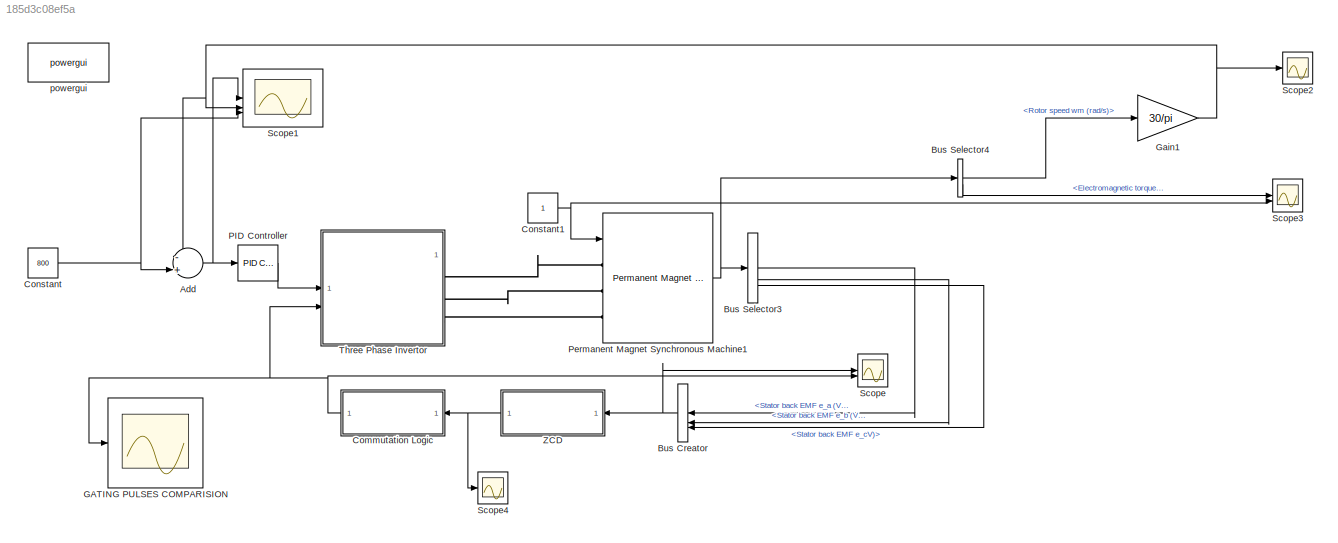
MODEL slx_185d3c08ef5a
KIND model
CONFIG AbsTol = auto
CONFIG EnableMultiTasking = off
CONFIG FixedStep = auto
CONFIG MaxStep = auto
CONFIG MinStep = auto
CONFIG RelTol = 1e-3
CONFIG SampleTimeConstraint = Unconstrained
CONFIG SolverName = VariableStepAuto
CONFIG StartTime = 0.0
CONFIG StopTime = 1
BLOCK [Sum] Add
  Inputs = -+|
BLOCK [BusCreator] Bus Creator
  DisplayOption = bar
  InheritFromInputs = on
  Inputs = 3
BLOCK [BusSelector] Bus Selector3
  OutputSignals = Stator back EMF e_a (V),Stator back EMF e_b (V),Stator back EMF e_cV)
BLOCK [BusSelector] Bus Selector4
  NameLocation = top
  OutputSignals = Rotor speed wm (rad/s),Electromagnetic torque Te (N*m)
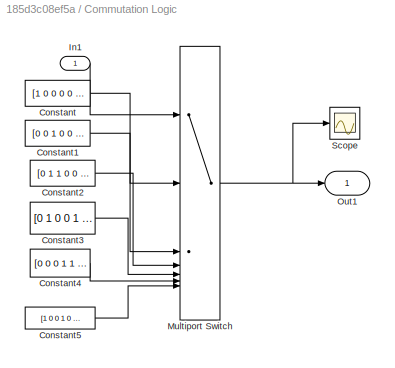
BLOCK [SubSystem] Commutation Logic
BLOCK [Constant] Commutation Logic/Constant
  Value = [1 0 0 0 0 1]
  VectorParams1D = off
BLOCK [Constant] Commutation Logic/Constant1
  Value = [0 0 1 0 0 1]
  VectorParams1D = off
BLOCK [Constant] Commutation Logic/Constant2
  Value = [0 1 1 0 0 0]
  VectorParams1D = off
BLOCK [Constant] Commutation Logic/Constant3
  Value = [0 1 0 0 1 0]
  VectorParams1D = off
BLOCK [Constant] Commutation Logic/Constant4
  Value = [0 0 0 1 1 0]
  VectorParams1D = off
BLOCK [Constant] Commutation Logic/Constant5
  Value = [1 0 0 1 0 0]
  VectorParams1D = off
BLOCK [Inport] Commutation Logic/In1
BLOCK [MultiPortSwitch] Commutation Logic/Multiport Switch
  DataPortOrder = Zero-based contiguous
  InputSameDT = off
  Inputs = 6
  SaturateOnIntegerOverflow = off
  zeroidx = on
BLOCK [Outport] Commutation Logic/Out1
BLOCK [Scope] Commutation Logic/Scope
  Floating = off
  NumInputPorts = 1
  ScopeSpecificationString = Simulink.scopes.TimeScopeBlockCfg('CurrentConfiguration', extmgr.ConfigurationSet(extmgr.Configuration('Core','General UI',true),extmgr.Configuration('Core','Source UI',true),extmgr.Configuration('Sources','WiredSimulink',true,'DataLoggingVariableName','ScopeData1'),extmgr.Configuration('Visuals','Time Domain',true,'SerializedDisplays',{struct('MinYLimReal','-0.125','MaxYLimReal','1.125','YLabelRe...<+1715ch>
BLOCK [Constant] Constant
  Value = 800
BLOCK [Constant] Constant1
BLOCK [Scope] GATING PULSES COMPARISION
  Floating = off
  NumInputPorts = 1
  ScopeSpecificationString = Simulink.scopes.TimeScopeBlockCfg('CurrentConfiguration', extmgr.ConfigurationSet(extmgr.Configuration('Core','General UI',true),extmgr.Configuration('Core','Source UI',true),extmgr.Configuration('Sources','WiredSimulink',true,'DataLoggingVariableName','ScopeData6'),extmgr.Configuration('Visuals','Time Domain',true,'SerializedDisplays',{struct('MinYLimReal','-0.125','MaxYLimReal','1.125','YLabelRe...<+2176ch>
BLOCK [Gain] Gain1
  Gain = 30/pi
BLOCK [Reference] PID Controller  REF=slpidlib/PID Controller
  LibrarySourceBlock = simulink/Continuous/PID Controller
  SourceBlock = slpidlib/PID Controller
  SourceType = PID 1dof
BLOCK [Reference] Permanent Magnet Synchronous Machine1  REF=spsPermanentMagnetSynchronousMachineLib/Permanent Magnet
Synchronous Machine
  LibrarySourceBlock = sps_lib/Electrical Machines/Permanent Magnet\nSynchronous Machine
  SourceBlock = spsPermanentMagnetSynchronousMachineLib/Permanent Magnet\nSynchronous Machine
  SourceType = Permanent Magnet Synchronous Machine
BLOCK [Scope] Scope
  Floating = off
  NumInputPorts = 2
  ScopeSpecificationString = Simulink.scopes.TimeScopeBlockCfg('CurrentConfiguration', extmgr.ConfigurationSet(extmgr.Configuration('Core','General UI',true),extmgr.Configuration('Core','Source UI',true),extmgr.Configuration('Sources','WiredSimulink',true,'DataLoggingVariableName','ScopeData2'),extmgr.Configuration('Visuals','Time Domain',true,'SerializedDisplays',{struct('MinYLimReal','-55.24574','MaxYLimReal','55.24574','YL...<+2193ch>
BLOCK [Scope] Scope1
  Floating = off
  NumInputPorts = 3
  ScopeSpecificationString = Simulink.scopes.TimeScopeBlockCfg('CurrentConfiguration', extmgr.ConfigurationSet(extmgr.Configuration('Core','General UI',true),extmgr.Configuration('Core','Source UI',true),extmgr.Configuration('Sources','WiredSimulink',true,'DataLoggingVariableName','ScopeData1'),extmgr.Configuration('Visuals','Time Domain',true,'SerializedDisplays',{struct('MinYLimReal','-9433.057','MaxYLimReal','9934.03385','...<+1539ch>
BLOCK [Scope] Scope2
  Floating = off
  NumInputPorts = 1
  ScopeSpecificationString = Simulink.scopes.TimeScopeBlockCfg('CurrentConfiguration', extmgr.ConfigurationSet(extmgr.Configuration('Core','General UI',true),extmgr.Configuration('Core','Source UI',true),extmgr.Configuration('Sources','WiredSimulink',true,'DataLoggingVariableName','ScopeData1'),extmgr.Configuration('Visuals','Time Domain',true,'SerializedDisplays',{struct('MinYLimReal','-1391.84548','MaxYLimReal','4065.09361'...<+1386ch>
BLOCK [Scope] Scope3
  Floating = off
  NumInputPorts = 2
  ScopeSpecificationString = Simulink.scopes.TimeScopeBlockCfg('CurrentConfiguration', extmgr.ConfigurationSet(extmgr.Configuration('Core','General UI',true),extmgr.Configuration('Core','Source UI',true),extmgr.Configuration('Sources','WiredSimulink',true,'DataLoggingVariableName','ScopeData1'),extmgr.Configuration('Visuals','Time Domain',true,'SerializedDisplays',{struct('MinYLimReal','-131.62928','MaxYLimReal','155.63292','...<+1469ch>
BLOCK [Scope] Scope4
  Floating = off
  NumInputPorts = 1
  ScopeSpecificationString = Simulink.scopes.TimeScopeBlockCfg('CurrentConfiguration', extmgr.ConfigurationSet(extmgr.Configuration('Core','General UI',true),extmgr.Configuration('Core','Source UI',true),extmgr.Configuration('Sources','WiredSimulink',true,'DataLoggingVariableName','ScopeData7'),extmgr.Configuration('Visuals','Time Domain',true,'SerializedDisplays',{struct('MinYLimReal','-0.625','MaxYLimReal','5.625','YLabelRe...<+1449ch>
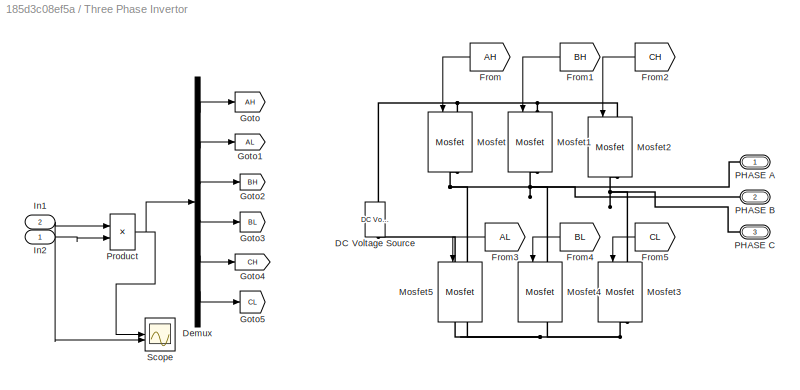
BLOCK [SubSystem] Three Phase Invertor
BLOCK [Reference] Three Phase Invertor/DC Voltage Source  REF=spsDCVoltageSourceLib/DC Voltage Source
  LibrarySourceBlock = sps_lib/Sources/DC Voltage Source
  SourceBlock = spsDCVoltageSourceLib/DC Voltage Source
  SourceType = DC Voltage Source
BLOCK [Demux] Three Phase Invertor/Demux
  Outputs = 6
BLOCK [From] Three Phase Invertor/From
  GotoTag = AH
BLOCK [From] Three Phase Invertor/From1
  GotoTag = BH
BLOCK [From] Three Phase Invertor/From2
  GotoTag = CH
BLOCK [From] Three Phase Invertor/From3
  GotoTag = AL
BLOCK [From] Three Phase Invertor/From4
  GotoTag = BL
BLOCK [From] Three Phase Invertor/From5
  GotoTag = CL
BLOCK [Goto] Three Phase Invertor/Goto
  GotoTag = AH
BLOCK [Goto] Three Phase Invertor/Goto1
  GotoTag = AL
BLOCK [Goto] Three Phase Invertor/Goto2
  GotoTag = BH
BLOCK [Goto] Three Phase Invertor/Goto3
  GotoTag = BL
BLOCK [Goto] Three Phase Invertor/Goto4
  GotoTag = CH
BLOCK [Goto] Three Phase Invertor/Goto5
  GotoTag = CL
BLOCK [Inport] Three Phase Invertor/In1
  Port = 2
BLOCK [Inport] Three Phase Invertor/In2
BLOCK [Reference] Three Phase Invertor/Mosfet  REF=spsMosfetLib/Mosfet
  LibrarySourceBlock = sps_lib/Power Electronics/Mosfet
  NameLocation = left
  SourceBlock = spsMosfetLib/Mosfet
  SourceType = Mosfet
BLOCK [Reference] Three Phase Invertor/Mosfet1  REF=spsMosfetLib/Mosfet
  LibrarySourceBlock = sps_lib/Power Electronics/Mosfet
  NameLocation = left
  SourceBlock = spsMosfetLib/Mosfet
  SourceType = Mosfet
BLOCK [Reference] Three Phase Invertor/Mosfet2  REF=spsMosfetLib/Mosfet
  LibrarySourceBlock = sps_lib/Power Electronics/Mosfet
  NameLocation = left
  SourceBlock = spsMosfetLib/Mosfet
  SourceType = Mosfet
BLOCK [Reference] Three Phase Invertor/Mosfet3  REF=spsMosfetLib/Mosfet
  LibrarySourceBlock = sps_lib/Power Electronics/Mosfet
  NameLocation = left
  SourceBlock = spsMosfetLib/Mosfet
  SourceType = Mosfet
BLOCK [Reference] Three Phase Invertor/Mosfet4  REF=spsMosfetLib/Mosfet
  LibrarySourceBlock = sps_lib/Power Electronics/Mosfet
  NameLocation = left
  SourceBlock = spsMosfetLib/Mosfet
  SourceType = Mosfet
BLOCK [Reference] Three Phase Invertor/Mosfet5  REF=spsMosfetLib/Mosfet
  LibrarySourceBlock = sps_lib/Power Electronics/Mosfet
  NameLocation = left
  SourceBlock = spsMosfetLib/Mosfet
  SourceType = Mosfet
BLOCK [PMIOPort] Three Phase Invertor/PHASE A
  Side = Right
BLOCK [PMIOPort] Three Phase Invertor/PHASE B
  Port = 2
  Side = Right
BLOCK [PMIOPort] Three Phase Invertor/PHASE C
  Port = 3
  Side = Right
BLOCK [Product] Three Phase Invertor/Product
BLOCK [Scope] Three Phase Invertor/Scope
  Floating = off
  NumInputPorts = 2
  ScopeSpecificationString = Simulink.scopes.TimeScopeBlockCfg('CurrentConfiguration', extmgr.ConfigurationSet(extmgr.Configuration('Core','General UI',true),extmgr.Configuration('Core','Source UI',true),extmgr.Configuration('Sources','WiredSimulink',true,'DataLoggingVariableName','ScopeData1'),extmgr.Configuration('Visuals','Time Domain',true,'SerializedDisplays',{struct('MinYLimReal','-795.09732','MaxYLimReal','532.78859','...<+1822ch>
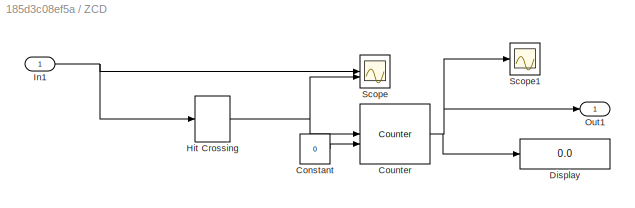
BLOCK [SubSystem] ZCD 
BLOCK [Constant] ZCD /Constant
  Value = 0
BLOCK [Reference] ZCD /Counter  REF=dspswit3/Counter
  SourceBlock = dspswit3/Counter
  SourceType = Counter
BLOCK [Display] ZCD /Display
  Decimation = 1
BLOCK [HitCross] ZCD /Hit Crossing
BLOCK [Inport] ZCD /In1
BLOCK [Outport] ZCD /Out1
BLOCK [Scope] ZCD /Scope
  Floating = off
  NumInputPorts = 2
  ScopeSpecificationString = Simulink.scopes.TimeScopeBlockCfg('CurrentConfiguration', extmgr.ConfigurationSet(extmgr.Configuration('Core','General UI',true),extmgr.Configuration('Core','Source UI',true),extmgr.Configuration('Sources','WiredSimulink',true,'DataLoggingVariableName','ScopeData1'),extmgr.Configuration('Visuals','Time Domain',true,'SerializedDisplays',{struct('MinYLimReal','-296.10111','MaxYLimReal','296.10111','...<+1780ch>
BLOCK [Scope] ZCD /Scope1
  Floating = off
  NumInputPorts = 1
  ScopeSpecificationString = Simulink.scopes.TimeScopeBlockCfg('CurrentConfiguration', extmgr.ConfigurationSet(extmgr.Configuration('Core','General UI',true),extmgr.Configuration('Core','Source UI',true),extmgr.Configuration('Sources','WiredSimulink',true,'DataLoggingVariableName','ScopeData3'),extmgr.Configuration('Visuals','Time Domain',true,'SerializedDisplays',{struct('MinYLimReal','0.375','MaxYLimReal','6.625','YLabelRea...<+1425ch>
BLOCK [Reference] powergui  REF=spspowerguiLib/powergui
  LibrarySourceBlock = sps_lib/powergui
  Priority = 1
  SourceBlock = spspowerguiLib/powergui
  SourceType = PSB option menu block
NET Add:1 -> PID Controller:1, Scope1:1
NET Bus Creator:1 -> Scope:1, ZCD :1
LINE Bus Selector3:1 -> Bus Creator:1
LINE Bus Selector3:2 -> Bus Creator:2
LINE Bus Selector3:3 -> Bus Creator:3
LINE Bus Selector4:1 -> Gain1:1
LINE Bus Selector4:2 -> Scope3:1
LINE Commutation Logic/Constant1:1 -> Commutation Logic/Multiport Switch:3
LINE Commutation Logic/Constant2:1 -> Commutation Logic/Multiport Switch:4
LINE Commutation Logic/Constant3:1 -> Commutation Logic/Multiport Switch:5
LINE Commutation Logic/Constant4:1 -> Commutation Logic/Multiport Switch:6
LINE Commutation Logic/Constant5:1 -> Commutation Logic/Multiport Switch:7
LINE Commutation Logic/Constant:1 -> Commutation Logic/Multiport Switch:2
LINE Commutation Logic/In1:1 -> Commutation Logic/Multiport Switch:1
NET Commutation Logic/Multiport Switch:1 -> Commutation Logic/Out1:1, Commutation Logic/Scope:1
NET Commutation Logic:1 -> GATING PULSES COMPARISION:1, Scope:2, Three Phase Invertor:2
NET Constant1:1 -> Permanent Magnet Synchronous Machine1:1, Scope3:2
NET Constant:1 -> Add:2, Scope1:3
NET Gain1:1 -> Add:1, Scope1:2, Scope2:1
LINE PID Controller:1 -> Three Phase Invertor:1
NET Permanent Magnet Synchronous Machine1:1 -> Bus Selector3:1, Bus Selector4:1
LINE Three Phase Invertor/Demux:1 -> Three Phase Invertor/Goto:1
LINE Three Phase Invertor/Demux:2 -> Three Phase Invertor/Goto1:1
LINE Three Phase Invertor/Demux:3 -> Three Phase Invertor/Goto2:1
LINE Three Phase Invertor/Demux:4 -> Three Phase Invertor/Goto3:1
LINE Three Phase Invertor/Demux:5 -> Three Phase Invertor/Goto4:1
LINE Three Phase Invertor/Demux:6 -> Three Phase Invertor/Goto5:1
LINE Three Phase Invertor/From1:1 -> Three Phase Invertor/Mosfet1:1
LINE Three Phase Invertor/From2:1 -> Three Phase Invertor/Mosfet2:1
LINE Three Phase Invertor/From3:1 -> Three Phase Invertor/Mosfet5:1
LINE Three Phase Invertor/From4:1 -> Three Phase Invertor/Mosfet4:1
LINE Three Phase Invertor/From5:1 -> Three Phase Invertor/Mosfet3:1
LINE Three Phase Invertor/From:1 -> Three Phase Invertor/Mosfet:1
NET Three Phase Invertor/In1:1 -> Three Phase Invertor/Product:1, Three Phase Invertor/Scope:2
LINE Three Phase Invertor/In2:1 -> Three Phase Invertor/Product:2
NET Three Phase Invertor/Product:1 -> Three Phase Invertor/Demux:1, Three Phase Invertor/Scope:1
LINE ZCD /Constant:1 -> ZCD /Counter:2
NET ZCD /Counter:1 -> ZCD /Display:1, ZCD /Out1:1, ZCD /Scope1:1
NET ZCD /Hit Crossing:1 -> ZCD /Counter:1, ZCD /Scope:2
NET ZCD /In1:1 -> ZCD /Hit Crossing:1, ZCD /Scope:1
NET ZCD :1 -> Commutation Logic:1, Scope4:1
PLINE Permanent Magnet Synchronous Machine1:LConn1 -- Three Phase Invertor:RConn1
PLINE Permanent Magnet Synchronous Machine1:LConn2 -- Three Phase Invertor:RConn2
PLINE Permanent Magnet Synchronous Machine1:LConn3 -- Three Phase Invertor:RConn3
PNET net1: Three Phase Invertor/DC Voltage Source:LConn1 -- Three Phase Invertor/Mosfet3:RConn1 -- Three Phase Invertor/Mosfet4:RConn1 -- Three Phase Invertor/Mosfet5:RConn1
PNET net2: Three Phase Invertor/DC Voltage Source:RConn1 -- Three Phase Invertor/Mosfet1:LConn1 -- Three Phase Invertor/Mosfet2:LConn1 -- Three Phase Invertor/Mosfet:LConn1
PNET net3: Three Phase Invertor/Mosfet1:RConn1 -- Three Phase Invertor/Mosfet4:LConn1 -- Three Phase Invertor/PHASE B:RConn1
PNET net4: Three Phase Invertor/Mosfet2:RConn1 -- Three Phase Invertor/Mosfet3:LConn1 -- Three Phase Invertor/PHASE C:RConn1
PNET net5: Three Phase Invertor/Mosfet5:LConn1 -- Three Phase Invertor/Mosfet:RConn1 -- Three Phase Invertor/PHASE A:RConn1
note: NET lines group one-source signal fan-out (src -> all destinations, sorted); 1:1 wires keep LINE; PNET lines group multi-terminal physical nets as a canonical sorted terminal list (undirected conserving connections); 2-terminal nets keep the pairwise PLINE form
